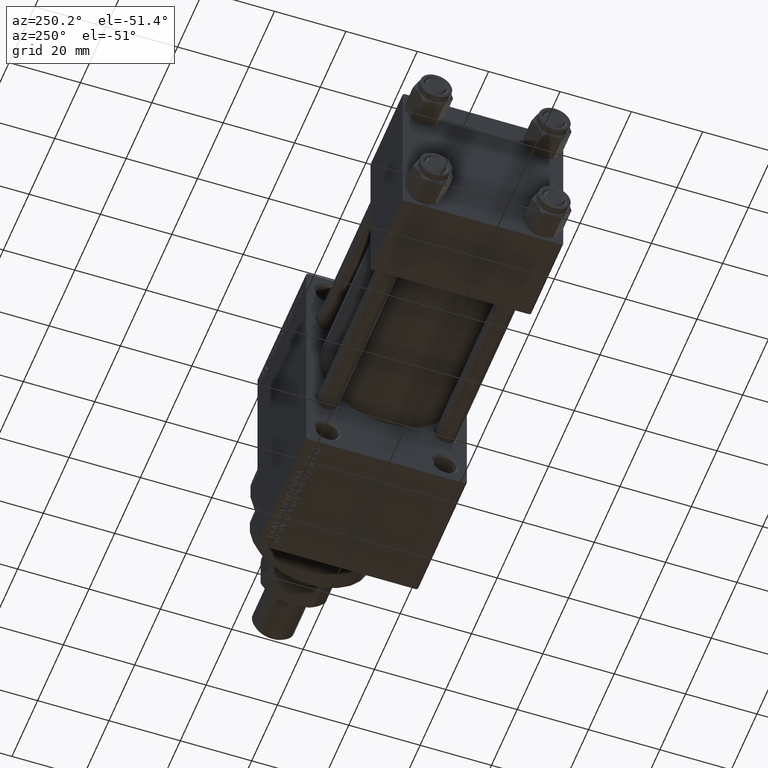
[diagram: clean part render]
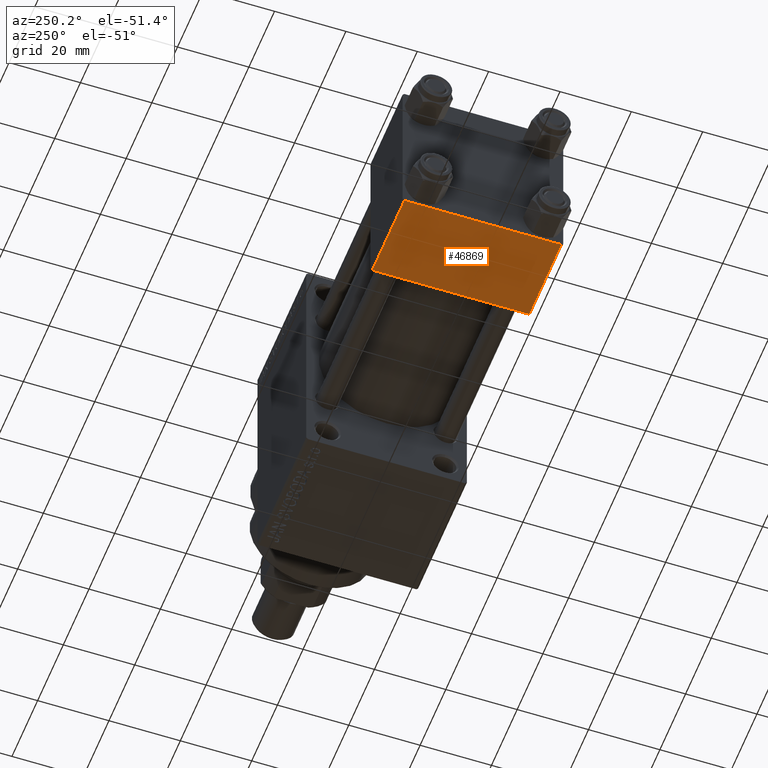
[diagram: same view with one face highlighted and labeled with its STEP entity id]
A machine part, auxiliary view. The second image highlights one B-rep face of the part: STEP entity #46869.
In plain terms, the highlighted planar face has unit normal (0, 0, -1).
Its self-contained STEP definition (entity closure, byte-faithful):
#766 = DIRECTION ( 'NONE',  ( 0.000000000000000000, 2.312964634635742957E-16, -1.000000000000000000 ) ) ;
#4025 = ORIENTED_EDGE ( 'NONE', *, *, #29543, .T. ) ;
#5166 = CARTESIAN_POINT ( 'NONE',  ( 0.000000000000000000, -21.99999999999998579, -22.50000000000000711 ) ) ;
#5393 = CARTESIAN_POINT ( 'NONE',  ( 25.00000000000000000, -21.99999999999997158, -22.50000000000000711 ) ) ;
#9474 = EDGE_CURVE ( 'NONE', #18345, #18966, #13135, .T. ) ;
#10995 = ORIENTED_EDGE ( 'NONE', *, *, #29283, .T. ) ;
#11127 = CARTESIAN_POINT ( 'NONE',  ( 25.00000000000000000, 22.50000000000000000, -22.49999999999999645 ) ) ;
#12913 = CARTESIAN_POINT ( 'NONE',  ( 25.00000000000000000, 21.99999999999999289, -22.49999999999999645 ) ) ;
#13135 = LINE ( 'NONE', #19423, #14823 ) ;
#13402 = ORIENTED_EDGE ( 'NONE', *, *, #9474, .F. ) ;
#14823 = VECTOR ( 'NONE', #38427, 1000.000000000000000 ) ;
#14985 = LINE ( 'NONE', #11127, #19586 ) ;
#15455 = DIRECTION ( 'NONE',  ( 0.000000000000000000, 1.000000000000000000, 2.312964634635742957E-16 ) ) ;
#16203 = EDGE_LOOP ( 'NONE', ( #13402, #10995, #28685, #4025 ) ) ;
#16900 = VERTEX_POINT ( 'NONE', #36910 ) ;
#17244 = LINE ( 'NONE', #12913, #21449 ) ;
#17288 = AXIS2_PLACEMENT_3D ( 'NONE', #23145, #766, #15455 ) ;
#18345 = VERTEX_POINT ( 'NONE', #30112 ) ;
#18966 = VERTEX_POINT ( 'NONE', #41533 ) ;
#19073 = PLANE ( 'NONE',  #17288 ) ;
#19423 = CARTESIAN_POINT ( 'NONE',  ( 0.000000000000000000, 22.50000000000000000, -22.49999999999999645 ) ) ;
#19586 = VECTOR ( 'NONE', #21721, 1000.000000000000000 ) ;
#20556 = DIRECTION ( 'NONE',  ( -1.000000000000000000, 0.000000000000000000, 0.000000000000000000 ) ) ;
#21449 = VECTOR ( 'NONE', #31201, 1000.000000000000000 ) ;
#21721 = DIRECTION ( 'NONE',  ( 0.000000000000000000, -1.000000000000000000, -2.312964634635742957E-16 ) ) ;
#23145 = CARTESIAN_POINT ( 'NONE',  ( 25.00000000000000000, 22.50000000000000000, -22.49999999999999645 ) ) ;
#25966 = VERTEX_POINT ( 'NONE', #5393 ) ;
#28685 = ORIENTED_EDGE ( 'NONE', *, *, #46789, .T. ) ;
#29283 = EDGE_CURVE ( 'NONE', #18345, #16900, #17244, .T. ) ;
#29543 = EDGE_CURVE ( 'NONE', #25966, #18966, #38146, .T. ) ;
#30112 = CARTESIAN_POINT ( 'NONE',  ( 0.000000000000000000, 21.99999999999999289, -22.49999999999999645 ) ) ;
#31201 = DIRECTION ( 'NONE',  ( 1.000000000000000000, 0.000000000000000000, 0.000000000000000000 ) ) ;
#33742 = FACE_OUTER_BOUND ( 'NONE', #16203, .T. ) ;
#36910 = CARTESIAN_POINT ( 'NONE',  ( 25.00000000000000000, 21.99999999999999289, -22.49999999999999645 ) ) ;
#38146 = LINE ( 'NONE', #5166, #47595 ) ;
#38427 = DIRECTION ( 'NONE',  ( 0.000000000000000000, -1.000000000000000000, -2.312964634635742957E-16 ) ) ;
#41533 = CARTESIAN_POINT ( 'NONE',  ( 0.000000000000000000, -21.99999999999997158, -22.50000000000000711 ) ) ;
#46789 = EDGE_CURVE ( 'NONE', #16900, #25966, #14985, .T. ) ;
#46869 = ADVANCED_FACE ( 'NONE', ( #33742 ), #19073, .T. ) ;
#47595 = VECTOR ( 'NONE', #20556, 1000.000000000000000 ) ;